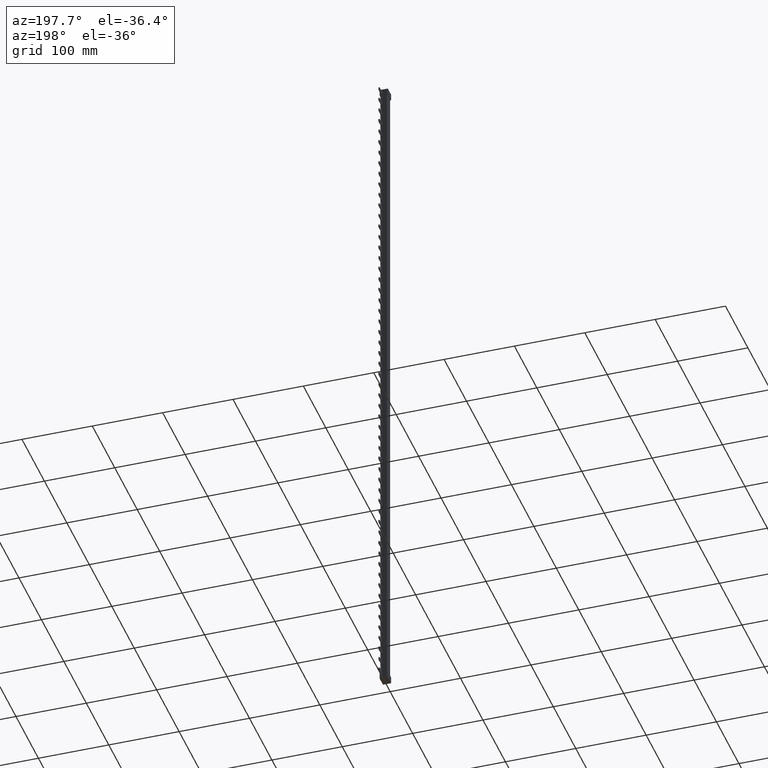
[diagram: clean part render]
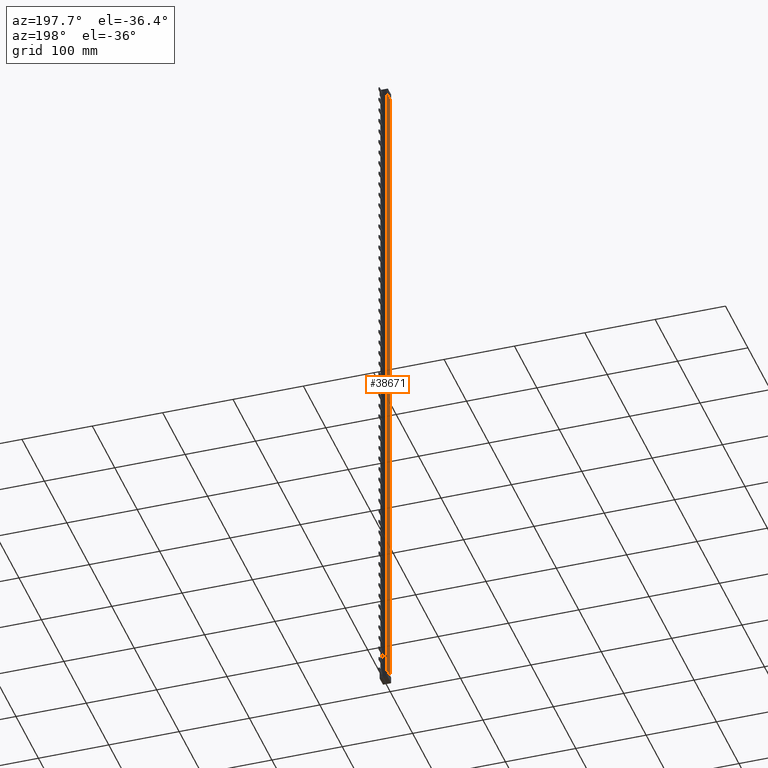
[diagram: same view with one face highlighted and labeled with its STEP entity id]
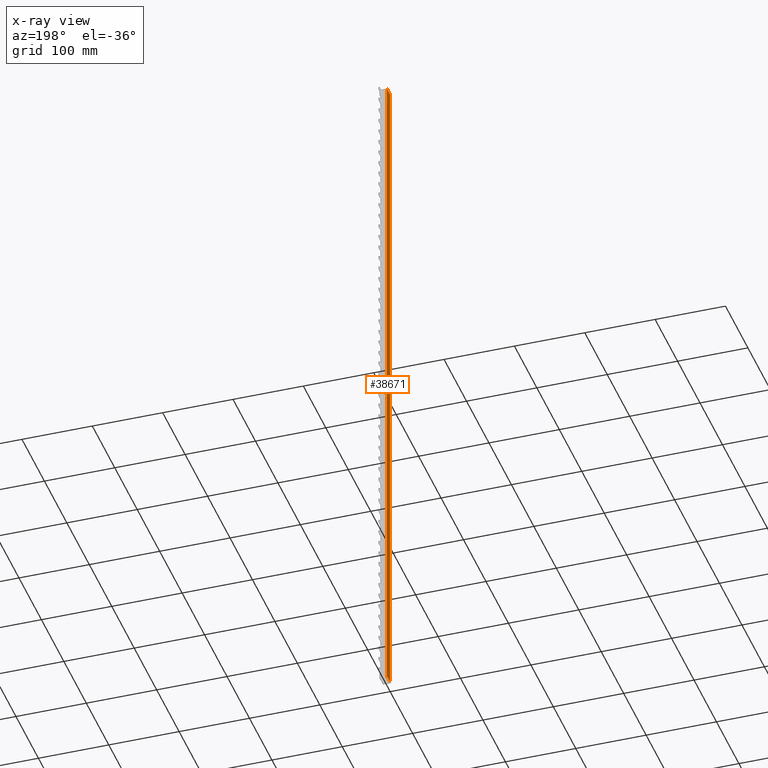
[diagram: x-ray of the same camera — body ghosted, the highlighted face saturated]
A machine part, auxiliary view. The second image highlights one B-rep face of the part: STEP entity #38671.
The next image is the same camera in x-ray: the body ghosted, the highlighted face saturated — about 0% of this face is hidden behind the body in this view.
In plain terms, the highlighted planar face has unit normal (1, -0, 0).
Its self-contained STEP definition (entity closure, byte-faithful):
#2714 = EDGE_CURVE ( 'NONE', #24086, #12531, #46681, .T. ) ;
#2767 = EDGE_CURVE ( 'NONE', #24084, #12531, #46795, .T. ) ;
#2892 = EDGE_CURVE ( 'NONE', #24086, #24070, #31810, .T. ) ;
#3000 = EDGE_CURVE ( 'NONE', #24036, #24119, #47225, .T. ) ;
#3008 = EDGE_CURVE ( 'NONE', #24163, #24119, #31835, .T. ) ;
#3067 = EDGE_CURVE ( 'NONE', #24084, #24096, #47393, .T. ) ;
#3095 = EDGE_CURVE ( 'NONE', #24096, #24036, #46347, .T. ) ;
#3097 = EDGE_CURVE ( 'NONE', #24163, #24070, #46349, .T. ) ;
#12531 = VERTEX_POINT ( 'NONE', #70372 ) ;
#16944 = EDGE_LOOP ( 'NONE', ( #22600, #22598, #22675, #22680, #22593, #22660, #22667, #22627 ) ) ;
#22593 = ORIENTED_EDGE ( 'NONE', *, *, #3095, .F. ) ;
#22598 = ORIENTED_EDGE ( 'NONE', *, *, #3097, .F. ) ;
#22600 = ORIENTED_EDGE ( 'NONE', *, *, #2892, .T. ) ;
#22627 = ORIENTED_EDGE ( 'NONE', *, *, #2714, .F. ) ;
#22660 = ORIENTED_EDGE ( 'NONE', *, *, #3067, .F. ) ;
#22667 = ORIENTED_EDGE ( 'NONE', *, *, #2767, .T. ) ;
#22675 = ORIENTED_EDGE ( 'NONE', *, *, #3008, .T. ) ;
#22680 = ORIENTED_EDGE ( 'NONE', *, *, #3000, .F. ) ;
#24036 = VERTEX_POINT ( 'NONE', #80374 ) ;
#24070 = VERTEX_POINT ( 'NONE', #80414 ) ;
#24084 = VERTEX_POINT ( 'NONE', #80492 ) ;
#24086 = VERTEX_POINT ( 'NONE', #80476 ) ;
#24096 = VERTEX_POINT ( 'NONE', #80496 ) ;
#24119 = VERTEX_POINT ( 'NONE', #80450 ) ;
#24163 = VERTEX_POINT ( 'NONE', #80559 ) ;
#31810 = B_SPLINE_CURVE_WITH_KNOTS ( 'NONE', 3,
 ( #46976, #46980, #46978, #46996 ),
 .UNSPECIFIED., .F., .F.,
 ( 4, 4 ),
 ( 3.222960364302612800E-016, 1.270203444159090100E-005 ),
 .UNSPECIFIED. ) ;
#31835 = B_SPLINE_CURVE_WITH_KNOTS ( 'NONE', 3,
 ( #47257, #47272, #47253, #47266 ),
 .UNSPECIFIED., .F., .F.,
 ( 4, 4 ),
 ( 3.551473622823408300E-017, 1.270203567234702200E-005 ),
 .UNSPECIFIED. ) ;
#35836 = AXIS2_PLACEMENT_3D ( 'NONE', #50213, #50250, #50296 ) ;
#38671 = ADVANCED_FACE ( 'NONE', ( #50285 ), #50242, .F. ) ;
#46347 = LINE ( 'NONE', #46360, #66715 ) ;
#46349 = LINE ( 'NONE', #46359, #66684 ) ;
#46359 = CARTESIAN_POINT ( 'NONE',  ( 0.0000000000000000000, 1.734723475976807100E-015, 217.7999999999999800 ) ) ;
#46360 = CARTESIAN_POINT ( 'NONE',  ( 0.0000000000000000000, 14.99999999999998600, 217.7999999999999800 ) ) ;
#46361 = DIRECTION ( 'NONE',  ( 0.0000000000000000000, 0.0000000000000000000, -1.000000000000000000 ) ) ;
#46370 = DIRECTION ( 'NONE',  ( 0.0000000000000000000, -1.000000000000000000, -0.0000000000000000000 ) ) ;
#46681 = LINE ( 'NONE', #46760, #66527 ) ;
#46740 = DIRECTION ( 'NONE',  ( 0.0000000000000000000, 1.000000000000000000, 0.0000000000000000000 ) ) ;
#46760 = CARTESIAN_POINT ( 'NONE',  ( 0.0000000000000000000, 14.99999999999998600, -769.7999999999999500 ) ) ;
#46779 = CARTESIAN_POINT ( 'NONE',  ( 0.0000000000000000000, 14.99999999999998600, -769.8000000000000700 ) ) ;
#46795 = LINE ( 'NONE', #46779, #66466 ) ;
#46810 = DIRECTION ( 'NONE',  ( 0.0000000000000000000, -1.000000000000000000, -0.0000000000000000000 ) ) ;
#46976 = CARTESIAN_POINT ( 'NONE',  ( 0.0000000000000000000, 0.01270166464112152500, -769.7999999999997300 ) ) ;
#46978 = CARTESIAN_POINT ( 'NONE',  ( 0.0000000000000000000, 0.004233506122947607600, -769.7999684908546700 ) ) ;
#46980 = CARTESIAN_POINT ( 'NONE',  ( 0.0000000000000000000, 0.008467653160869999900, -769.7999999999997300 ) ) ;
#46996 = CARTESIAN_POINT ( 'NONE',  ( 3.446099988802169000E-011, 8.673617379884035500E-016, -769.7999030758454600 ) ) ;
#47198 = CARTESIAN_POINT ( 'NONE',  ( 0.0000000000000000000, 14.99999999999998600, 217.8000000000000100 ) ) ;
#47215 = DIRECTION ( 'NONE',  ( -0.0000000000000000000, -1.000000000000000000, -0.0000000000000000000 ) ) ;
#47225 = LINE ( 'NONE', #47198, #66614 ) ;
#47253 = CARTESIAN_POINT ( 'NONE',  ( 0.0000000000000000000, 0.008467653979508956900, 217.7999999999999300 ) ) ;
#47257 = CARTESIAN_POINT ( 'NONE',  ( -1.232595164407830900E-029, -3.377156227183333400E-014, 217.7999030758261700 ) ) ;
#47266 = CARTESIAN_POINT ( 'NONE',  ( 0.0000000000000000000, 0.01270166587201605400, 217.8000000000000100 ) ) ;
#47272 = CARTESIAN_POINT ( 'NONE',  ( -2.465190328815661900E-029, 0.004233506532201680000, 217.7999684908489300 ) ) ;
#47375 = DIRECTION ( 'NONE',  ( -0.0000000000000000000, -0.0000000000000000000, 1.000000000000000000 ) ) ;
#47382 = CARTESIAN_POINT ( 'NONE',  ( 0.0000000000000000000, 14.99999999999998600, 217.7999999999999800 ) ) ;
#47393 = LINE ( 'NONE', #47382, #66593 ) ;
#50213 = CARTESIAN_POINT ( 'NONE',  ( 0.0000000000000000000, 14.99999999999998600, 217.7999999999999800 ) ) ;
#50242 = PLANE ( 'NONE',  #35836 ) ;
#50250 = DIRECTION ( 'NONE',  ( 1.000000000000000000, -0.0000000000000000000, 0.0000000000000000000 ) ) ;
#50285 = FACE_OUTER_BOUND ( 'NONE', #16944, .T. ) ;
#50296 = DIRECTION ( 'NONE',  ( 0.0000000000000000000, 0.0000000000000000000, -1.000000000000000000 ) ) ;
#66466 = VECTOR ( 'NONE', #46810, 1000.000000000000000 ) ;
#66527 = VECTOR ( 'NONE', #46740, 1000.000000000000000 ) ;
#66593 = VECTOR ( 'NONE', #47375, 1000.000000000000000 ) ;
#66614 = VECTOR ( 'NONE', #47215, 1000.000000000000000 ) ;
#66684 = VECTOR ( 'NONE', #46361, 1000.000000000000000 ) ;
#66715 = VECTOR ( 'NONE', #46370, 1000.000000000000000 ) ;
#70372 = CARTESIAN_POINT ( 'NONE',  ( 0.0000000000000000000, 13.60000000000009400, -769.8000000000000700 ) ) ;
#80374 = CARTESIAN_POINT ( 'NONE',  ( 0.0000000000000000000, 13.60000000000009400, 217.8000000000000100 ) ) ;
#80414 = CARTESIAN_POINT ( 'NONE',  ( 3.446099988802169000E-011, 8.673617379884035500E-016, -769.7999030758454600 ) ) ;
#80450 = CARTESIAN_POINT ( 'NONE',  ( 0.0000000000000000000, 0.01270166587201605400, 217.8000000000000100 ) ) ;
#80476 = CARTESIAN_POINT ( 'NONE',  ( 0.0000000000000000000, 0.01270166464112152500, -769.7999999999997300 ) ) ;
#80492 = CARTESIAN_POINT ( 'NONE',  ( 0.0000000000000000000, 14.99999999999998600, -769.8000000000000700 ) ) ;
#80496 = CARTESIAN_POINT ( 'NONE',  ( 0.0000000000000000000, 14.99999999999998600, 217.7999999999999800 ) ) ;
#80559 = CARTESIAN_POINT ( 'NONE',  ( -1.232595164407830900E-029, -3.377156227183333400E-014, 217.7999030758261700 ) ) ;